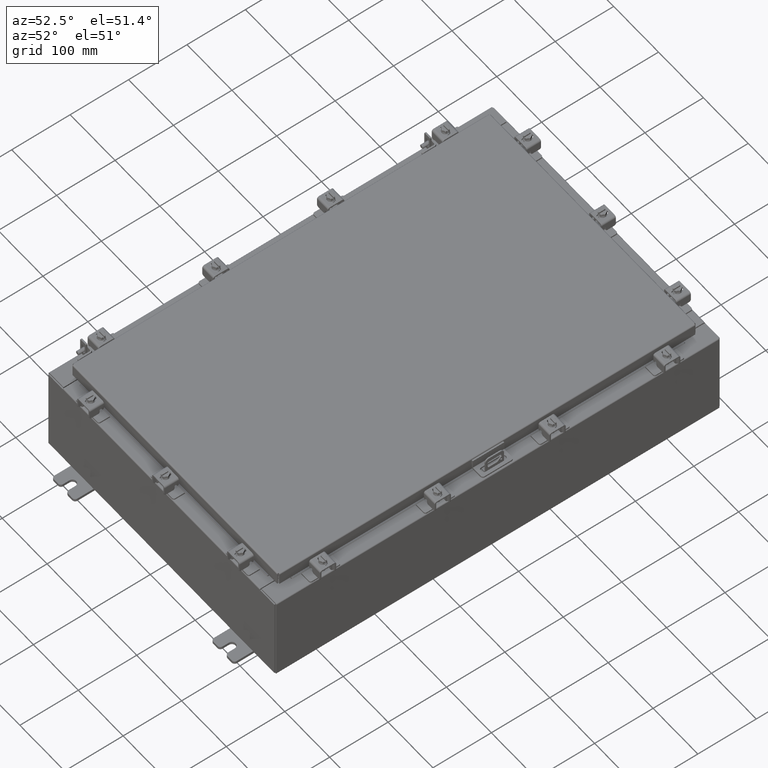
[diagram: clean part render]
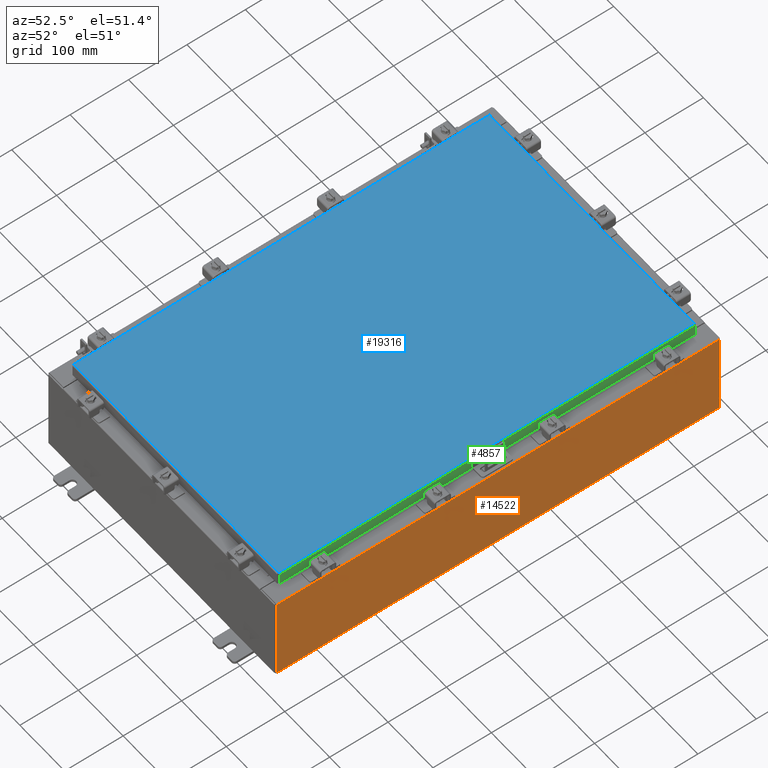
[diagram: same view with three faces highlighted in distinct colors, each labeled with its STEP entity id]
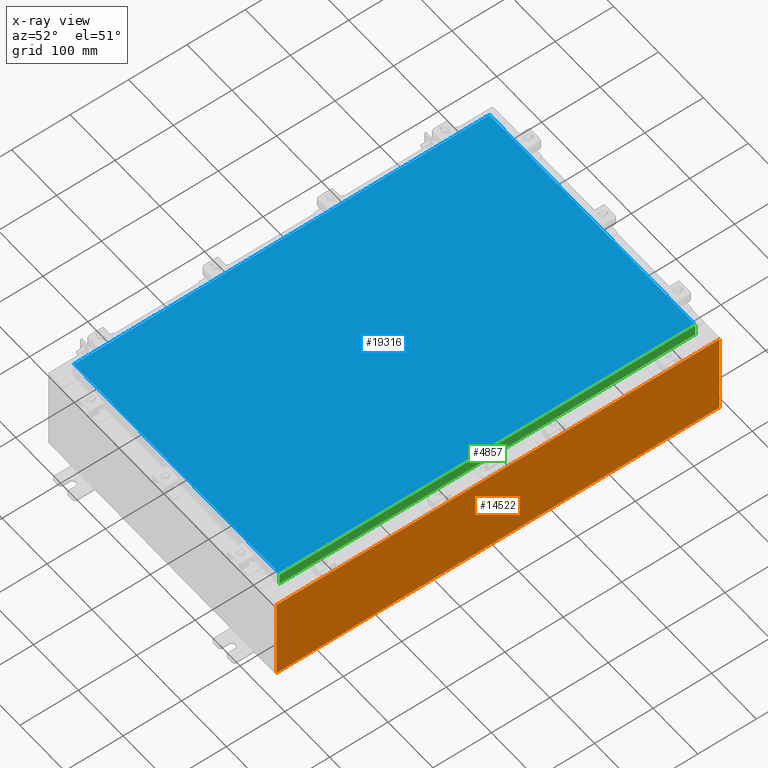
[diagram: x-ray of the same camera — body ghosted, the three highlighted faces saturated]
A machine part, auxiliary view with three faces highlighted in distinct colors.
The next image is the same camera in x-ray (body ghosted, the three faces saturated) — at least one of them is partly hidden behind the body in this view.
Their STEP definitions:

[orange] entity #14522 — the highlighted planar face has unit normal (-1, 0, 0).
#570 = ORIENTED_EDGE ( 'NONE', *, *, #17970, .T. ) ;
#1176 = CARTESIAN_POINT ( 'NONE',  ( 10.00000000000002000, 14.92530000000000700, 5.837600000000001000 ) ) ;
#1786 = EDGE_CURVE ( 'NONE', #13673, #2771, #3448, .T. ) ;
#2353 = PLANE ( 'NONE',  #5556 ) ;
#2771 = VERTEX_POINT ( 'NONE', #18989 ) ;
#3004 = CARTESIAN_POINT ( 'NONE',  ( 10.00000000000000000, 14.92530000000000500, 0.01299999999999986400 ) ) ;
#3448 = LINE ( 'NONE', #7910, #12400 ) ;
#4132 = DIRECTION ( 'NONE',  ( -1.000000000000000000, 0.0000000000000000000, 3.319545939341922000E-015 ) ) ;
#5063 = EDGE_CURVE ( 'NONE', #20802, #13673, #23112, .T. ) ;
#5220 = VERTEX_POINT ( 'NONE', #3004 ) ;
#5517 = CARTESIAN_POINT ( 'NONE',  ( 10.00000000000002000, -14.92529999999999800, 5.837600000000001000 ) ) ;
#5556 = AXIS2_PLACEMENT_3D ( 'NONE', #14840, #4132, #16612 ) ;
#7174 = VECTOR ( 'NONE', #19530, 39.37007874015748100 ) ;
#7707 = CARTESIAN_POINT ( 'NONE',  ( 10.00000000000002000, 14.92530000000000700, 5.837600000000001000 ) ) ;
#7910 = CARTESIAN_POINT ( 'NONE',  ( 10.00000000000000000, -14.92529999999999600, -3.345627304943080600E-014 ) ) ;
#7923 = VECTOR ( 'NONE', #18443, 39.37007874015748100 ) ;
#8659 = EDGE_CURVE ( 'NONE', #5220, #2771, #12672, .T. ) ;
#9620 = ORIENTED_EDGE ( 'NONE', *, *, #1786, .T. ) ;
#11236 = CARTESIAN_POINT ( 'NONE',  ( 10.00000000000000000, -14.92529999999999600, 0.01299999999999986400 ) ) ;
#12400 = VECTOR ( 'NONE', #20406, 39.37007874015748100 ) ;
#12444 = EDGE_LOOP ( 'NONE', ( #21660, #9620, #18996, #570 ) ) ;
#12672 = LINE ( 'NONE', #11236, #7923 ) ;
#13673 = VERTEX_POINT ( 'NONE', #5517 ) ;
#14522 = ADVANCED_FACE ( 'NONE', ( #23170 ), #2353, .F. ) ;
#14840 = CARTESIAN_POINT ( 'NONE',  ( 10.00000000000000000, 0.0000000000000000000, -3.345627304943080600E-014 ) ) ;
#14873 = DIRECTION ( 'NONE',  ( -0.0000000000000000000, -1.000000000000000000, -0.0000000000000000000 ) ) ;
#16612 = DIRECTION ( 'NONE',  ( 3.319545939341922000E-015, 0.0000000000000000000, 1.000000000000000000 ) ) ;
#17229 = LINE ( 'NONE', #17739, #7174 ) ;
#17739 = CARTESIAN_POINT ( 'NONE',  ( 10.00000000000000000, 14.92530000000000500, -3.345627304943080600E-014 ) ) ;
#17970 = EDGE_CURVE ( 'NONE', #5220, #20802, #17229, .T. ) ;
#18354 = VECTOR ( 'NONE', #14873, 39.37007874015748100 ) ;
#18443 = DIRECTION ( 'NONE',  ( -0.0000000000000000000, -1.000000000000000000, -0.0000000000000000000 ) ) ;
#18989 = CARTESIAN_POINT ( 'NONE',  ( 10.00000000000000000, -14.92529999999999600, 0.01299999999999985900 ) ) ;
#18996 = ORIENTED_EDGE ( 'NONE', *, *, #8659, .F. ) ;
#19530 = DIRECTION ( 'NONE',  ( 3.319545939341922800E-015, 0.0000000000000000000, 1.000000000000000000 ) ) ;
#20406 = DIRECTION ( 'NONE',  ( -3.319545939341922800E-015, 0.0000000000000000000, -1.000000000000000000 ) ) ;
#20802 = VERTEX_POINT ( 'NONE', #1176 ) ;
#21660 = ORIENTED_EDGE ( 'NONE', *, *, #5063, .T. ) ;
#23112 = LINE ( 'NONE', #7707, #18354 ) ;
#23170 = FACE_OUTER_BOUND ( 'NONE', #12444, .T. ) ;

[blue] entity #19316 — the highlighted planar face has unit normal (0, 0, -1).
#351 = PLANE ( 'NONE',  #4446 ) ;
#537 = DIRECTION ( 'NONE',  ( 1.000000000000000000, -0.0000000000000000000, -0.0000000000000000000 ) ) ;
#1056 = EDGE_LOOP ( 'NONE', ( #11243, #10801, #1155, #21825 ) ) ;
#1120 = VECTOR ( 'NONE', #11043, 39.37007874015748100 ) ;
#1155 = ORIENTED_EDGE ( 'NONE', *, *, #18714, .T. ) ;
#1652 = CARTESIAN_POINT ( 'NONE',  ( -8.990299999999997700, 14.00630000000000100, -2.048885995248197400E-016 ) ) ;
#2175 = DIRECTION ( 'NONE',  ( 0.0000000000000000000, 0.0000000000000000000, -1.000000000000000000 ) ) ;
#2951 = VERTEX_POINT ( 'NONE', #1652 ) ;
#4330 = LINE ( 'NONE', #21476, #22799 ) ;
#4446 = AXIS2_PLACEMENT_3D ( 'NONE', #9254, #2175, #14648 ) ;
#6082 = CARTESIAN_POINT ( 'NONE',  ( 8.990300000000001300, -14.00629999999999800, -2.048885995248197400E-016 ) ) ;
#6967 = CARTESIAN_POINT ( 'NONE',  ( 8.990300000000001300, -14.00629999999999800, -2.048885995248197400E-016 ) ) ;
#8735 = VERTEX_POINT ( 'NONE', #6082 ) ;
#8746 = DIRECTION ( 'NONE',  ( 0.0000000000000000000, 1.000000000000000000, 0.0000000000000000000 ) ) ;
#9254 = CARTESIAN_POINT ( 'NONE',  ( 0.0000000000000000000, 0.0000000000000000000, 0.0000000000000000000 ) ) ;
#10801 = ORIENTED_EDGE ( 'NONE', *, *, #17934, .T. ) ;
#11043 = DIRECTION ( 'NONE',  ( 0.0000000000000000000, -1.000000000000000000, 0.0000000000000000000 ) ) ;
#11213 = CARTESIAN_POINT ( 'NONE',  ( -8.990299999999996000, -14.00629999999999800, 1.963515745446189200E-015 ) ) ;
#11243 = ORIENTED_EDGE ( 'NONE', *, *, #12576, .T. ) ;
#11718 = VECTOR ( 'NONE', #537, 39.37007874015748100 ) ;
#12480 = VECTOR ( 'NONE', #8746, 39.37007874015748100 ) ;
#12576 = EDGE_CURVE ( 'NONE', #21354, #8735, #20694, .T. ) ;
#14344 = DIRECTION ( 'NONE',  ( -1.000000000000000000, -0.0000000000000000000, -0.0000000000000000000 ) ) ;
#14648 = DIRECTION ( 'NONE',  ( -1.000000000000000000, 0.0000000000000000000, -0.0000000000000000000 ) ) ;
#15040 = CARTESIAN_POINT ( 'NONE',  ( -8.990299999999996000, -14.00629999999999800, 1.980589795406590900E-015 ) ) ;
#15065 = VERTEX_POINT ( 'NONE', #16046 ) ;
#16046 = CARTESIAN_POINT ( 'NONE',  ( 8.990300000000001300, 14.00629999999999800, -2.048885995248197400E-016 ) ) ;
#17934 = EDGE_CURVE ( 'NONE', #8735, #15065, #22556, .T. ) ;
#18714 = EDGE_CURVE ( 'NONE', #15065, #2951, #4330, .T. ) ;
#19316 = ADVANCED_FACE ( 'NONE', ( #22784 ), #351, .F. ) ;
#20112 = LINE ( 'NONE', #21789, #1120 ) ;
#20694 = LINE ( 'NONE', #11213, #11718 ) ;
#21209 = EDGE_CURVE ( 'NONE', #2951, #21354, #20112, .T. ) ;
#21354 = VERTEX_POINT ( 'NONE', #15040 ) ;
#21476 = CARTESIAN_POINT ( 'NONE',  ( 8.990300000000001300, 14.00629999999999800, -2.048885995248197400E-016 ) ) ;
#21789 = CARTESIAN_POINT ( 'NONE',  ( -8.990299999999997700, 14.00630000000000100, -2.048885995248197400E-016 ) ) ;
#21825 = ORIENTED_EDGE ( 'NONE', *, *, #21209, .T. ) ;
#22556 = LINE ( 'NONE', #6967, #12480 ) ;
#22784 = FACE_OUTER_BOUND ( 'NONE', #1056, .T. ) ;
#22799 = VECTOR ( 'NONE', #14344, 39.37007874015748100 ) ;

[green] entity #4857 — the highlighted planar face has unit normal (1, 0, 0).
#391 = LINE ( 'NONE', #13463, #14075 ) ;
#1072 = VECTOR ( 'NONE', #8915, 39.37007874015748100 ) ;
#1266 = VECTOR ( 'NONE', #8685, 39.37007874015748100 ) ;
#1817 = LINE ( 'NONE', #17592, #1266 ) ;
#2817 = ORIENTED_EDGE ( 'NONE', *, *, #16721, .T. ) ;
#3257 = LINE ( 'NONE', #20422, #16953 ) ;
#3295 = DIRECTION ( 'NONE',  ( -2.818880942772360100E-015, -6.982962677686265900E-015, 1.000000000000000000 ) ) ;
#3515 = CARTESIAN_POINT ( 'NONE',  ( 9.078000000000004700, -14.09399999999999900, -0.8499999999999996400 ) ) ;
#4213 = LINE ( 'NONE', #21120, #9524 ) ;
#4498 = EDGE_CURVE ( 'NONE', #15275, #14460, #5786, .T. ) ;
#4857 = ADVANCED_FACE ( 'NONE', ( #17524 ), #12465, .T. ) ;
#5253 = CARTESIAN_POINT ( 'NONE',  ( 9.078000000000004700, -14.00515786437626400, -0.8499999999999996400 ) ) ;
#5430 = ORIENTED_EDGE ( 'NONE', *, *, #17744, .T. ) ;
#5723 = EDGE_CURVE ( 'NONE', #14460, #19765, #8282, .T. ) ;
#5786 = LINE ( 'NONE', #3515, #1072 ) ;
#5813 = CARTESIAN_POINT ( 'NONE',  ( 9.078000000000004700, 14.00515786437627200, -0.8499999999999996400 ) ) ;
#6664 = CARTESIAN_POINT ( 'NONE',  ( 9.078000000000001200, -14.00515786437626900, -0.08770000000000007000 ) ) ;
#7157 = CARTESIAN_POINT ( 'NONE',  ( 9.078000000000001200, 0.0000000000000000000, 2.585061485449907200E-014 ) ) ;
#7440 = CARTESIAN_POINT ( 'NONE',  ( 9.077999999999995900, 13.25515786437627200, -0.8500000000000002000 ) ) ;
#7999 = ORIENTED_EDGE ( 'NONE', *, *, #5723, .F. ) ;
#8282 = LINE ( 'NONE', #7440, #12457 ) ;
#8685 = DIRECTION ( 'NONE',  ( -2.818880942772360100E-015, -6.982962677686265900E-015, 1.000000000000000000 ) ) ;
#8915 = DIRECTION ( 'NONE',  ( 0.0000000000000000000, -1.000000000000000000, 0.0000000000000000000 ) ) ;
#8947 = DIRECTION ( 'NONE',  ( 2.818880942772360100E-015, 0.0000000000000000000, -1.000000000000000000 ) ) ;
#9226 = DIRECTION ( 'NONE',  ( 0.0000000000000000000, -1.000000000000000000, 0.0000000000000000000 ) ) ;
#9524 = VECTOR ( 'NONE', #3295, 39.37007874015748100 ) ;
#10396 = ORIENTED_EDGE ( 'NONE', *, *, #19510, .F. ) ;
#10511 = ORIENTED_EDGE ( 'NONE', *, *, #11623, .F. ) ;
#11623 = EDGE_CURVE ( 'NONE', #19182, #19636, #4213, .T. ) ;
#12457 = VECTOR ( 'NONE', #9226, 39.37007874015748100 ) ;
#12465 = PLANE ( 'NONE',  #15288 ) ;
#13463 = CARTESIAN_POINT ( 'NONE',  ( 9.078000000000004700, -14.09399999999999900, -0.8499999999999996400 ) ) ;
#14075 = VECTOR ( 'NONE', #17060, 39.37007874015748100 ) ;
#14460 = VERTEX_POINT ( 'NONE', #21931 ) ;
#14799 = VERTEX_POINT ( 'NONE', #22660 ) ;
#15275 = VERTEX_POINT ( 'NONE', #5813 ) ;
#15288 = AXIS2_PLACEMENT_3D ( 'NONE', #7157, #19643, #8947 ) ;
#16721 = EDGE_CURVE ( 'NONE', #15275, #14799, #1817, .T. ) ;
#16953 = VECTOR ( 'NONE', #22219, 39.37007874015748100 ) ;
#17060 = DIRECTION ( 'NONE',  ( 0.0000000000000000000, -1.000000000000000000, 0.0000000000000000000 ) ) ;
#17302 = EDGE_LOOP ( 'NONE', ( #10511, #10396, #7999, #22075, #2817, #5430 ) ) ;
#17524 = FACE_OUTER_BOUND ( 'NONE', #17302, .T. ) ;
#17592 = CARTESIAN_POINT ( 'NONE',  ( 9.078000000000001200, 14.00515786437626900, 1.236481095165428500E-013 ) ) ;
#17744 = EDGE_CURVE ( 'NONE', #14799, #19636, #3257, .T. ) ;
#17755 = CARTESIAN_POINT ( 'NONE',  ( 9.077999999999995900, -13.25515786437626400, -0.8500000000000002000 ) ) ;
#19182 = VERTEX_POINT ( 'NONE', #5253 ) ;
#19510 = EDGE_CURVE ( 'NONE', #19765, #19182, #391, .T. ) ;
#19636 = VERTEX_POINT ( 'NONE', #6664 ) ;
#19643 = DIRECTION ( 'NONE',  ( 1.000000000000000000, 0.0000000000000000000, 2.818880942772360100E-015 ) ) ;
#19765 = VERTEX_POINT ( 'NONE', #17755 ) ;
#20422 = CARTESIAN_POINT ( 'NONE',  ( 9.078000000000001200, 0.0000000000000000000, -0.08770000000000007000 ) ) ;
#21120 = CARTESIAN_POINT ( 'NONE',  ( 9.078000000000001200, -14.00515786437626900, -0.07469999999999978000 ) ) ;
#21931 = CARTESIAN_POINT ( 'NONE',  ( 9.077999999999995900, 13.25515786437627100, -0.8500000000000002000 ) ) ;
#22075 = ORIENTED_EDGE ( 'NONE', *, *, #4498, .F. ) ;
#22219 = DIRECTION ( 'NONE',  ( 0.0000000000000000000, -1.000000000000000000, 0.0000000000000000000 ) ) ;
#22660 = CARTESIAN_POINT ( 'NONE',  ( 9.078000000000001200, 14.00515786437626500, -0.08770000000000007000 ) ) ;